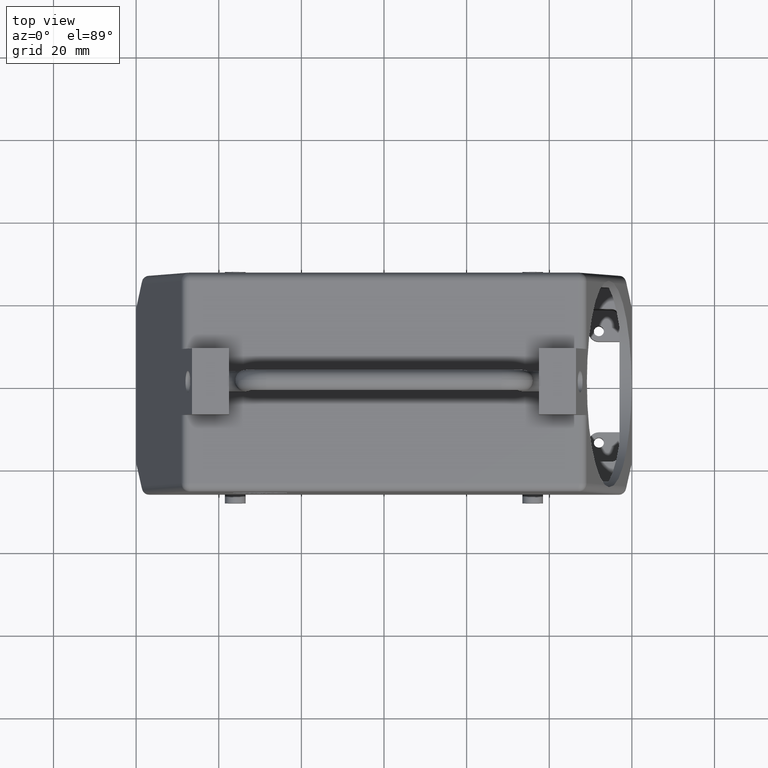
[diagram: clean part render]
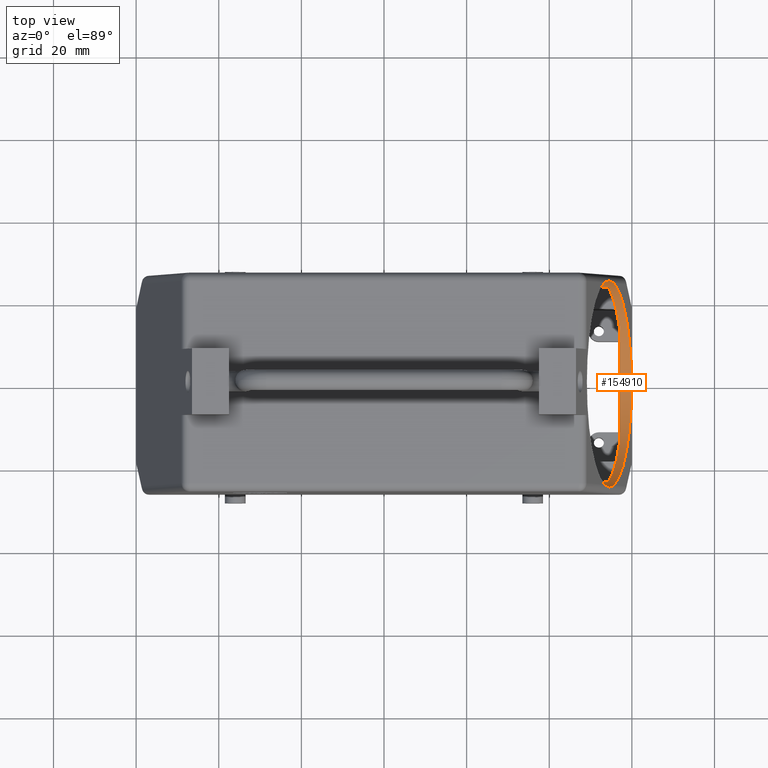
[diagram: same view with one face highlighted and labeled with its STEP entity id]
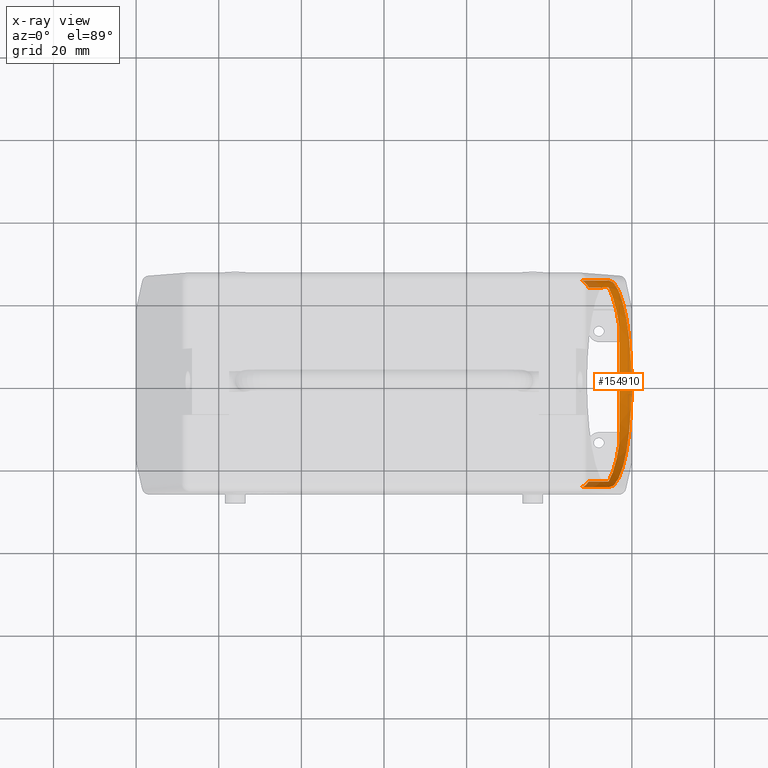
[diagram: x-ray of the same camera — body ghosted, the highlighted face saturated]
A machine part, top view. The second image highlights one B-rep face of the part: STEP entity #154910.
The next image is the same camera in x-ray: the body ghosted, the highlighted face saturated — about 6% of this face is hidden behind the body in this view.
In plain terms, the highlighted cylindrical surface (partial cylindrical patch) has radius 25 mm, axis along (0.9763, 0, 0.2164).
Its self-contained STEP definition (entity closure, byte-faithful):
#6170=CARTESIAN_POINT('',(54.1371165072251,-24.5,53.2053057961492));
#6180=DIRECTION('',(0.216439613938102,0.,-0.976296007119934));
#6190=DIRECTION('',(0.690345527079855,-0.707106781186548,
0.15304591873303));
#6200=AXIS2_PLACEMENT_3D('',#6170,#6180,#6190);
#6210=CYLINDRICAL_SURFACE('',#6200,2.);
#6320=CARTESIAN_POINT('',(54.5154806603722,0.,60.7390680237581));
#6330=DIRECTION('',(0.976296007119934,0.,0.216439613938102));
#6340=DIRECTION('',(0.,1.,0.));
#6350=AXIS2_PLACEMENT_3D('',#6320,#6330,#6340);
#6360=CYLINDRICAL_SURFACE('',#6350,25.);
#6880=CARTESIAN_POINT('',(54.4534777344045,-25.,60.7253223060028));
#6890=VERTEX_POINT('',#6880);
#6920=CARTESIAN_POINT('',(54.4534777344045,-25.,60.7253223060028));
#6930=CARTESIAN_POINT('',(54.4760580896283,-25.,60.6234689056793));
#6940=CARTESIAN_POINT('',(54.4988056362263,-24.9993469329369,
60.5216420494269));
#6950=CARTESIAN_POINT('',(54.5217155955358,-24.9980405798723,
60.4198537867525));
#6960=CARTESIAN_POINT('',(54.5446255540183,-24.9967342268549,
60.3180655277528));
#6970=CARTESIAN_POINT('',(54.5676979169358,-24.9947745878707,
60.2163158887812));
#6980=CARTESIAN_POINT('',(54.5909236902414,-24.9921617818743,
60.114616070936));
#6990=CARTESIAN_POINT('',(54.6141494633139,-24.9895489759042,
60.0129162541116));
#7000=CARTESIAN_POINT('',(54.6375286360486,-24.9862830035899,
59.911266282502));
#7010=CARTESIAN_POINT('',(54.6610480738747,-24.9823643225704,
59.8096764290265));
#7020=CARTESIAN_POINT('',(54.684567511973,-24.9784456415056,
59.7080865743748));
#7030=CARTESIAN_POINT('',(54.708227202496,-24.9738742529167,
59.6065568590436));
#7040=CARTESIAN_POINT('',(54.7320099813641,-24.9686509481067,
59.5050965705486));
#7050=CARTESIAN_POINT('',(54.7557929242442,-24.9634276072755,
59.4036355823584));
#7060=CARTESIAN_POINT('',(54.7796982342403,-24.9575525335095,
59.3022470333256));
#7070=CARTESIAN_POINT('',(54.8037068673784,-24.9510263020519,
59.2009307045287));
#7080=CARTESIAN_POINT('',(54.8277164623462,-24.9444998091416,
59.0996103168146));
#7090=CARTESIAN_POINT('',(54.8518339761589,-24.9373208267342,
58.9983428006413));
#7100=CARTESIAN_POINT('',(54.8760349032483,-24.9294897625259,
58.8971348163651));
#7110=CARTESIAN_POINT('',(54.90023582929,-24.9216586986566,
58.7959268364703));
#7120=CARTESIAN_POINT('',(54.9245201552831,-24.9131755540261,
58.6947784018484));
#7130=CARTESIAN_POINT('',(54.9488596796338,-24.9040410256591,
58.5936953888393));
#7140=CARTESIAN_POINT('',(54.9731992036237,-24.8949064974275,
58.4926123773292));
#7150=CARTESIAN_POINT('',(54.9975939136941,-24.8851205866294,
58.3915947965449));
#7160=CARTESIAN_POINT('',(55.0220120776573,-24.8746842727947,
58.2906476841643));
#7170=CARTESIAN_POINT('',(55.0464302416718,-24.8642479589381,
58.1897005715712));
#7180=CARTESIAN_POINT('',(55.0708718491493,-24.8531612431108,
58.0888239325176));
#7190=CARTESIAN_POINT('',(55.0953017877044,-24.8414253786501,
57.9880219450774));
#7200=CARTESIAN_POINT('',(55.1197317264591,-24.8296895140933,
57.8872199568132));
#7210=CARTESIAN_POINT('',(55.144149988505,-24.8173045016416,
57.7864926215974));
#7220=CARTESIAN_POINT('',(55.1685182049114,-24.8042718606929,
57.6858432656039));
#7230=CARTESIAN_POINT('',(55.1928864214094,-24.7912392196952,
57.5851939092323));
#7240=CARTESIAN_POINT('',(55.2172045878962,-24.7775589504007,
57.4846225301056));
#7250=CARTESIAN_POINT('',(55.2414311642148,-24.7632328341234,
57.3841316340767));
#7260=CARTESIAN_POINT('',(55.2656577402688,-24.7489067180025,
57.2836407391454));
#7270=CARTESIAN_POINT('',(55.2897927259801,-24.7339347543393,
57.1832303220762));
#7280=CARTESIAN_POINT('',(55.3137914454982,-24.7183189883837,
57.0829021197918));
#7290=CARTESIAN_POINT('',(55.3377894928932,-24.7027036597731,
56.9825767273617));
#7300=CARTESIAN_POINT('',(55.3616532023993,-24.686443434553,
56.8823256474168));
#7310=CARTESIAN_POINT('',(55.3853399598678,-24.6695361910366,
56.7821271930354));
#7320=CARTESIAN_POINT('',(55.4090262436587,-24.6526292856241,
56.6819307423803));
#7330=CARTESIAN_POINT('',(55.4325335276182,-24.6350767371032,
56.5817955444072));
#7340=CARTESIAN_POINT('',(55.4558100329234,-24.6168805928269,
56.4817235188306));
#7350=CARTESIAN_POINT('',(55.4790865382157,-24.5986844485607,
56.3816514933097));
#7360=CARTESIAN_POINT('',(55.502132281224,-24.5798447068058,
56.2816426325701));
#7370=CARTESIAN_POINT('',(55.524892000873,-24.5603637552042,
56.1816979720811));
#7380=CARTESIAN_POINT('',(55.5476517205748,-24.5408828035573,
56.0817533113603));
#7390=CARTESIAN_POINT('',(55.5701254396262,-24.5207606409268,
55.9818728496344));
#7400=CARTESIAN_POINT('',(55.5922541441753,-24.5,55.8820567138497));
#7410=B_SPLINE_CURVE_WITH_KNOTS('',3,(#6920,#6930,#6940,#6950,#6960,
#6970,#6980,#6990,#7000,#7010,#7020,#7030,#7040,#7050,#7060,#7070,#7080,
#7090,#7100,#7110,#7120,#7130,#7140,#7150,#7160,#7170,#7180,#7190,#7200,
#7210,#7220,#7230,#7240,#7250,#7260,#7270,#7280,#7290,#7300,#7310,#7320,
#7330,#7340,#7350,#7360,#7370,#7380,#7390,#7400),.UNSPECIFIED.,.F.,.F.,(
4,3,3,3,3,3,3,3,3,3,3,3,3,3,3,3,4),(0.,0.313005791764077,
0.626048511789377,0.939102752068762,1.25214249434515,1.56514292967403,
1.87817395353103,2.19126798514757,2.50440101283055,2.8175481925195,
3.13068436658095,3.44378450783636,3.75682410580992,4.06981906457076,
4.38284046138079,4.69586322487867,5.00886141030246),.UNSPECIFIED.);
#7420=SURFACE_CURVE('',#7410,(#6210,#6360),.CURVE_3D.);
#7430=CARTESIAN_POINT('',(55.5922541441753,-24.5,55.8820567138497));
#7440=VERTEX_POINT('',#7430);
#7450=EDGE_CURVE('',#6890,#7440,#7420,.T.);
#8430=CARTESIAN_POINT('',(54.1371165072251,24.5,53.2053057961492));
#8440=DIRECTION('',(-0.216439613938102,0.,0.976296007119934));
#8450=DIRECTION('',(0.690345527079855,0.707106781186548,0.15304591873303
));
#8460=AXIS2_PLACEMENT_3D('',#8430,#8440,#8450);
#8470=CYLINDRICAL_SURFACE('',#8460,2.);
#8520=CARTESIAN_POINT('',(55.5922541441753,24.5,55.8820567138497));
#8530=VERTEX_POINT('',#8520);
#8560=CARTESIAN_POINT('',(55.5922541441754,24.5,55.8820567138496));
#8570=CARTESIAN_POINT('',(55.5701254396262,24.5207606409268,
55.9818728496344));
#8580=CARTESIAN_POINT('',(55.5476517205748,24.5408828035573,
56.0817533113602));
#8590=CARTESIAN_POINT('',(55.5248920008731,24.5603637552041,
56.181697972081));
#8600=CARTESIAN_POINT('',(55.502132281224,24.5798447068058,
56.2816426325702));
#8610=CARTESIAN_POINT('',(55.4790865382157,24.5986844485607,
56.3816514933097));
#8620=CARTESIAN_POINT('',(55.4558100329234,24.6168805928269,
56.4817235188306));
#8630=CARTESIAN_POINT('',(55.4325335276182,24.6350767371032,
56.5817955444071));
#8640=CARTESIAN_POINT('',(55.4090262436587,24.6526292856241,
56.6819307423803));
#8650=CARTESIAN_POINT('',(55.3853399598679,24.6695361910366,
56.7821271930354));
#8660=CARTESIAN_POINT('',(55.3616532023986,24.6864434345535,
56.8823256474198));
#8670=CARTESIAN_POINT('',(55.3377894928925,24.7027036597736,
56.9825767273646));
#8680=CARTESIAN_POINT('',(55.3137914454982,24.7183189883837,
57.0829021197917));
#8690=CARTESIAN_POINT('',(55.2897927259801,24.7339347543393,
57.1832303220761));
#8700=CARTESIAN_POINT('',(55.2656577402688,24.7489067180025,
57.2836407391454));
#8710=CARTESIAN_POINT('',(55.2414311642148,24.7632328341234,
57.3841316340767));
#8720=CARTESIAN_POINT('',(55.2172045878987,24.7775589503992,
57.484622530095));
#8730=CARTESIAN_POINT('',(55.1928864214079,24.791239219696,
57.5851939092383));
#8740=CARTESIAN_POINT('',(55.1685182049114,24.8042718606929,
57.6858432656038));
#8750=CARTESIAN_POINT('',(55.144149988505,24.8173045016416,
57.7864926215973));
#8760=CARTESIAN_POINT('',(55.1197317264591,24.8296895140933,
57.8872199568133));
#8770=CARTESIAN_POINT('',(55.0953017877044,24.84142537865,
57.9880219450774));
#8780=CARTESIAN_POINT('',(55.0708718491493,24.8531612431108,
58.0888239325176));
#8790=CARTESIAN_POINT('',(55.0464302416718,24.8642479589381,
58.1897005715712));
#8800=CARTESIAN_POINT('',(55.0220120776573,24.8746842727947,
58.2906476841642));
#8810=CARTESIAN_POINT('',(54.9975939136941,24.8851205866294,
58.3915947965449));
#8820=CARTESIAN_POINT('',(54.9731992036237,24.8949064974275,
58.4926123773292));
#8830=CARTESIAN_POINT('',(54.9488596796339,24.9040410256591,
58.5936953888393));
#8840=CARTESIAN_POINT('',(54.9245201552831,24.9131755540261,
58.6947784018484));
#8850=CARTESIAN_POINT('',(54.90023582929,24.9216586986566,
58.7959268364703));
#8860=CARTESIAN_POINT('',(54.8760349032483,24.9294897625259,
58.8971348163651));
#8870=CARTESIAN_POINT('',(54.8518339761589,24.9373208267342,
58.9983428006413));
#8880=CARTESIAN_POINT('',(54.8277164623462,24.9444998091416,
59.0996103168146));
#8890=CARTESIAN_POINT('',(54.8037068673784,24.9510263020519,
59.2009307045287));
#8900=CARTESIAN_POINT('',(54.7796982342403,24.9575525335095,
59.3022470333256));
#8910=CARTESIAN_POINT('',(54.7557929242442,24.9634276072755,
59.4036355823584));
#8920=CARTESIAN_POINT('',(54.7320099813641,24.9686509481067,
59.5050965705486));
#8930=CARTESIAN_POINT('',(54.708227202496,24.9738742529167,
59.6065568590436));
#8940=CARTESIAN_POINT('',(54.684567511973,24.9784456415056,
59.7080865743747));
#8950=CARTESIAN_POINT('',(54.6610480738747,24.9823643225704,
59.8096764290265));
#8960=CARTESIAN_POINT('',(54.6375286360446,24.9862830035906,
59.9112662825195));
#8970=CARTESIAN_POINT('',(54.6141494633099,24.9895489759046,
60.012916254129));
#8980=CARTESIAN_POINT('',(54.5909236902414,24.9921617818743,
60.114616070936));
#8990=CARTESIAN_POINT('',(54.5676979169358,24.9947745878707,
60.2163158887812));
#9000=CARTESIAN_POINT('',(54.5446255540183,24.9967342268549,
60.3180655277528));
#9010=CARTESIAN_POINT('',(54.5217155955358,24.9980405798723,
60.4198537867525));
#9020=CARTESIAN_POINT('',(54.4988056362263,24.9993469329369,
60.5216420494268));
#9030=CARTESIAN_POINT('',(54.4760580896283,25.,60.6234689056793));
#9040=CARTESIAN_POINT('',(54.4534777344045,25.,60.7253223060028));
#9050=B_SPLINE_CURVE_WITH_KNOTS('',3,(#8560,#8570,#8580,#8590,#8600,
#8610,#8620,#8630,#8640,#8650,#8660,#8670,#8680,#8690,#8700,#8710,#8720,
#8730,#8740,#8750,#8760,#8770,#8780,#8790,#8800,#8810,#8820,#8830,#8840,
#8850,#8860,#8870,#8880,#8890,#8900,#8910,#8920,#8930,#8940,#8950,#8960,
#8970,#8980,#8990,#9000,#9010,#9020,#9030,#9040),.UNSPECIFIED.,.F.,.F.,(
4,3,3,3,3,3,3,3,3,3,3,3,3,3,3,3,4),(0.,0.312998185423786,
0.626020948921469,0.93904234573149,1.25203730449234,1.56507690246568,
1.87817704372087,2.19131321778254,2.50446039747171,2.81759342515491,
3.13068745677122,3.4437184806278,3.75671891595668,4.06975865823306,
4.38281289851225,4.69585561853754,5.00886141030163),.UNSPECIFIED.);
#9060=SURFACE_CURVE('',#9050,(#8470,#6360),.CURVE_3D.);
#9070=CARTESIAN_POINT('',(54.4534777344045,25.,60.7253223060028));
#9080=VERTEX_POINT('',#9070);
#9090=EDGE_CURVE('',#8530,#9080,#9060,.T.);
#20250=CARTESIAN_POINT('',(52.5012555032987,0.,60.2925250570737));
#20260=DIRECTION('',(0.976296007119934,0.,0.216439613938102));
#20270=DIRECTION('',(0.,1.,0.));
#20280=AXIS2_PLACEMENT_3D('',#20250,#20260,#20270);
#20290=CIRCLE('',#20280,25.);
#88670=CARTESIAN_POINT('',(54.3473471170984,-23.5,51.9653439161679));
#88680=VERTEX_POINT('',#88670);
#88710=CARTESIAN_POINT('',(56.361572274172,-23.5,52.4118868828522));
#88720=DIRECTION('',(0.976296007119934,0.,0.216439613938102));
#88730=VECTOR('',#88720,1.);
#88740=LINE('',#88710,#88730);
#88750=CARTESIAN_POINT('',(49.5275002243325,-23.5,50.8968095852855));
#88760=VERTEX_POINT('',#88750);
#88770=EDGE_CURVE('',#88760,#88680,#88740,.T.);
#103830=CARTESIAN_POINT('',(54.5154806603722,0.,60.7390680237581));
#103840=DIRECTION('',(0.976296007119934,0.,0.216439613938102));
#103850=DIRECTION('',(0.,1.,0.));
#103860=AXIS2_PLACEMENT_3D('',#103830,#103840,#103850);
#103870=CIRCLE('',#103860,25.);
#103880=EDGE_CURVE('',#7440,#8530,#103870,.T.);
#122730=CARTESIAN_POINT('',(57.,-13.8915342839239,40.));
#122740=VERTEX_POINT('',#122730);
#122770=EDGE_CURVE('',#88680,#122740,#20290,.T.);
#134400=CARTESIAN_POINT('',(57.,13.8915342839239,40.));
#134410=VERTEX_POINT('',#134400);
#134440=CARTESIAN_POINT('',(57.,0.,61.2898727005867));
#134450=DIRECTION('',(1.,-0.,0.));
#134460=DIRECTION('',(0.,0.,-1.));
#134470=AXIS2_PLACEMENT_3D('',#134440,#134450,#134460);
#134480=ELLIPSE('',#134470,25.6069878578627,25.);
#134490=EDGE_CURVE('',#122740,#134410,#134480,.T.);
#148810=CARTESIAN_POINT('',(49.5275002243325,23.5,50.8968095852855));
#148820=VERTEX_POINT('',#148810);
#148850=CARTESIAN_POINT('',(56.361572274172,23.5,52.4118868828522));
#148860=DIRECTION('',(0.976296007119934,0.,0.216439613938102));
#148870=VECTOR('',#148860,1.);
#148880=LINE('',#148850,#148870);
#148890=CARTESIAN_POINT('',(54.3473471170984,23.5,51.9653439161679));
#148900=VERTEX_POINT('',#148890);
#148910=EDGE_CURVE('',#148820,#148900,#148880,.T.);
#149550=EDGE_CURVE('',#134410,#148900,#20290,.T.);
#149770=CARTESIAN_POINT('',(47.6814086105327,0.,59.2239907261914));
#149780=DIRECTION('',(0.976296007119934,0.,0.216439613938102));
#149790=DIRECTION('',(0.,1.,0.));
#149800=AXIS2_PLACEMENT_3D('',#149770,#149780,#149790);
#149810=CIRCLE('',#149800,25.);
#149820=CARTESIAN_POINT('',(47.6814086105327,-25.,59.2239907261914));
#149830=VERTEX_POINT('',#149820);
#149860=CARTESIAN_POINT('',(54.5154806603722,-25.,60.7390680237581));
#149870=DIRECTION('',(0.976296007119934,0.,0.216439613938102));
#149880=VECTOR('',#149870,1.);
#149890=LINE('',#149860,#149880);
#149900=EDGE_CURVE('',#149830,#6890,#149890,.T.);
#149950=CARTESIAN_POINT('',(54.5154806603722,25.,60.7390680237581));
#149960=DIRECTION('',(0.976296007119934,0.,0.216439613938102));
#149970=VECTOR('',#149960,1.);
#149980=LINE('',#149950,#149970);
#149990=CARTESIAN_POINT('',(47.6814086105327,25.,59.2239907261914));
#150000=VERTEX_POINT('',#149990);
#150010=EDGE_CURVE('',#150000,#9080,#149980,.T.);
#150200=EDGE_CURVE('',#148820,#150000,#149810,.T.);
#150340=EDGE_CURVE('',#149830,#88760,#149810,.T.);
#154720=CARTESIAN_POINT('',(54.5154806603722,0.,60.7390680237581));
#154730=DIRECTION('',(0.976296007119934,0.,0.216439613938102));
#154740=DIRECTION('',(0.,1.,0.));
#154750=AXIS2_PLACEMENT_3D('',#154720,#154730,#154740);
#154760=CYLINDRICAL_SURFACE('',#154750,25.);
#154770=ORIENTED_EDGE('',*,*,#9090,.T.);
#154780=ORIENTED_EDGE('',*,*,#103880,.T.);
#154790=ORIENTED_EDGE('',*,*,#7450,.T.);
#154800=ORIENTED_EDGE('',*,*,#149900,.T.);
#154810=ORIENTED_EDGE('',*,*,#150340,.F.);
#154820=ORIENTED_EDGE('',*,*,#88770,.F.);
#154830=ORIENTED_EDGE('',*,*,#122770,.F.);
#154840=ORIENTED_EDGE('',*,*,#134490,.F.);
#154850=ORIENTED_EDGE('',*,*,#149550,.F.);
#154860=ORIENTED_EDGE('',*,*,#148910,.T.);
#154870=ORIENTED_EDGE('',*,*,#150200,.F.);
#154880=ORIENTED_EDGE('',*,*,#150010,.F.);
#154890=EDGE_LOOP('',(#154880,#154870,#154860,#154850,#154840,#154830,
#154820,#154810,#154800,#154790,#154780,#154770));
#154900=FACE_OUTER_BOUND('',#154890,.T.);
#154910=ADVANCED_FACE('',(#154900),#154760,.F.);